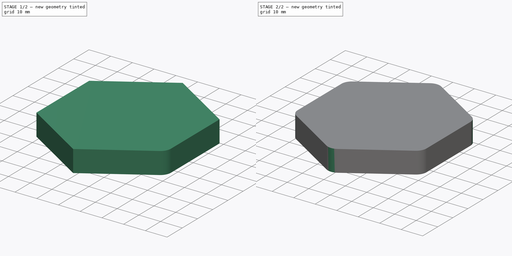
[diagram: build sequence overview — one tinted view per stage of 2, left to right]
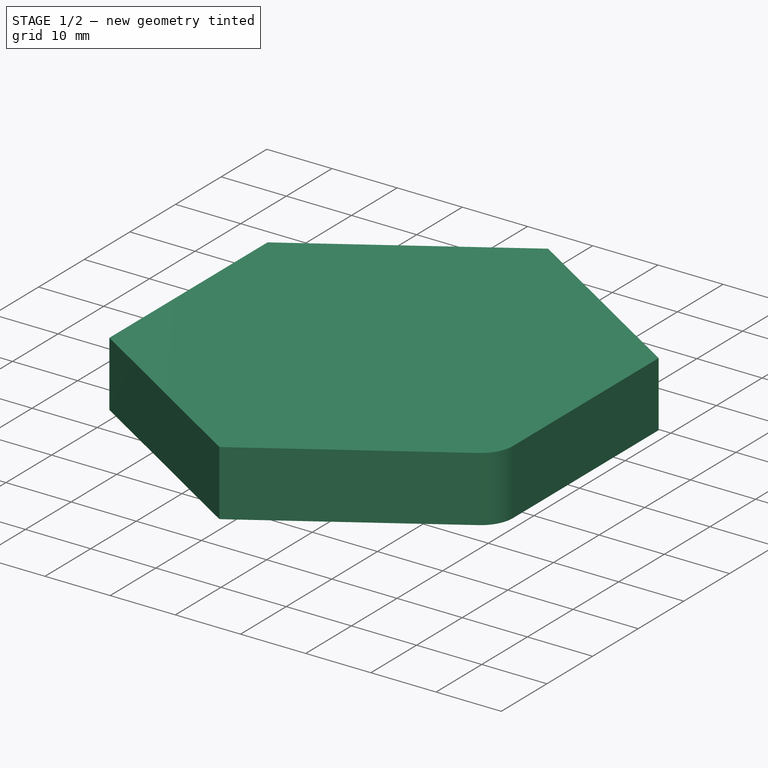
[diagram: stage 1 of 2 — iso view after this stage's code; geometry added in this stage tinted green]
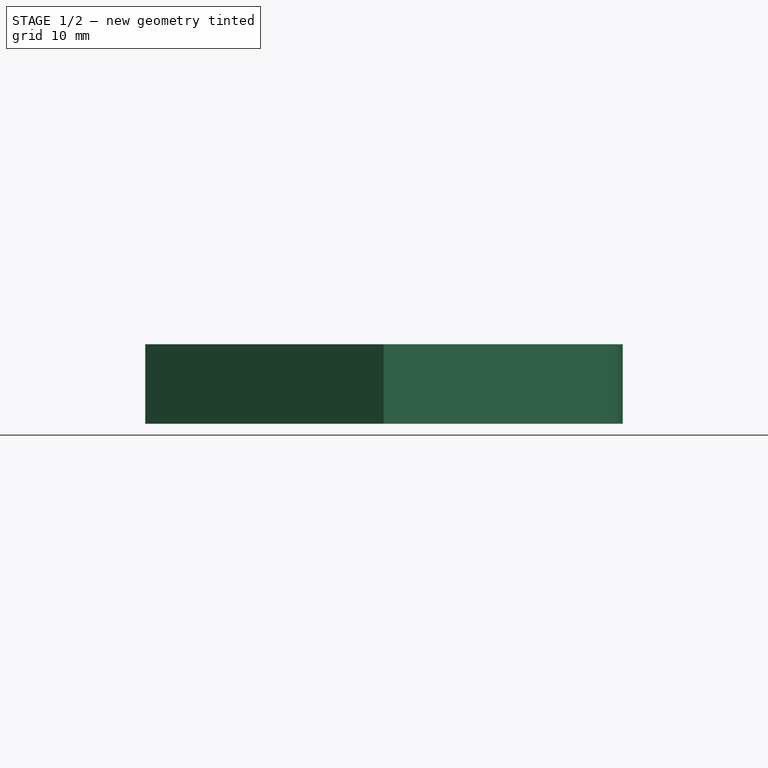
[diagram: stage 1 of 2 — front view after this stage's code; geometry added in this stage tinted green]
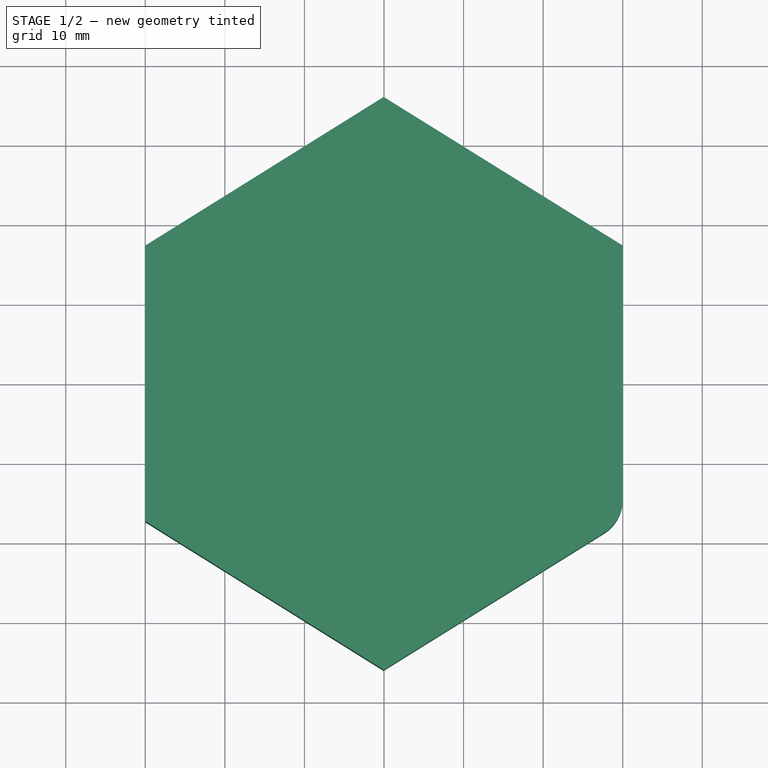
[diagram: stage 1 of 2 — top view after this stage's code; geometry added in this stage tinted green]
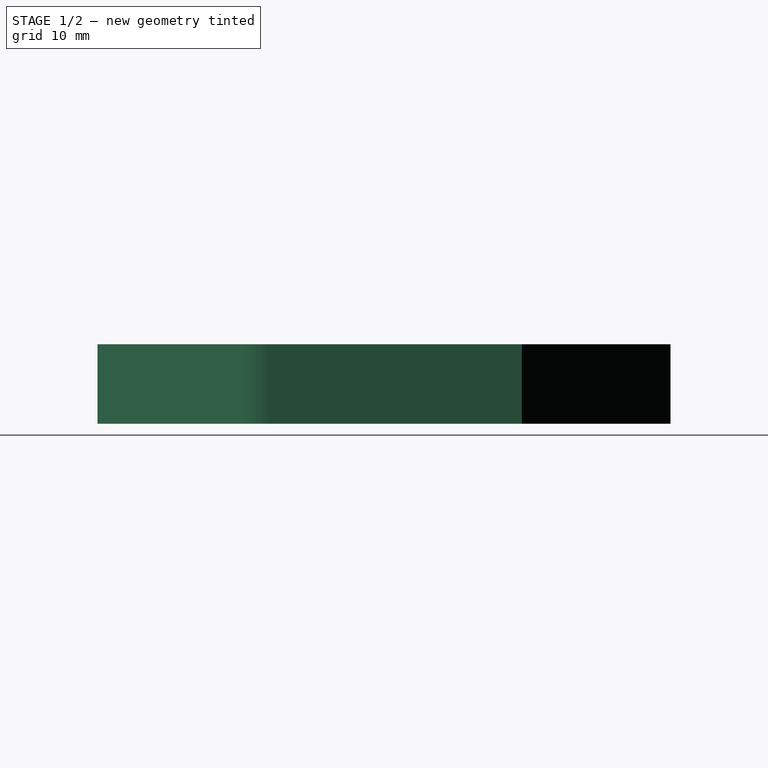
[diagram: stage 1 of 2 — right view after this stage's code; geometry added in this stage tinted green]
FCSTD DOCUMENT  (FreeCAD 0.21R33694 (Git))
Label: OJT1_T20R01_hexagon
License: All rights reserved
LicenseURL: https://en.wikipedia.org/wiki/All_rights_reserved
objects: Part::Fillet×3, Sketcher::SketchObject×1, PartDesign::Pad×1, PartDesign::Body×1
note: 7 computed .brp shape members not serialized (recipe doc carries the construction recipe); baked Part::Feature solids carry a one-line shape summary decoded from their .brp

FEATURE [Sketcher::SketchObject] Sketch
  FullyConstrained = false
  MapMode = 5
  Support = -> [XY_Plane]
  sketch-geometry (7):
    g0: LineSegment StartX=-0.042821 StartY=36 StartZ=0 EndX=-30 EndY=17.3205 EndZ=0
    g1: LineSegment StartX=-30 StartY=17.3205 StartZ=0 EndX=-30 EndY=-17.3205 EndZ=0
    g2: LineSegment StartX=-30 StartY=-17.3205 StartZ=0 EndX=-0.042821 EndY=-36 EndZ=0
    g3: LineSegment StartX=-0.042821 StartY=-36 StartZ=0 EndX=30 EndY=-17.3205 EndZ=0
    g4: LineSegment StartX=30 StartY=-17.3205 StartZ=0 EndX=30 EndY=17.3205 EndZ=0
    g5: LineSegment StartX=30 StartY=17.3205 StartZ=0 EndX=-0.042821 EndY=36 EndZ=0
    g6: LineSegment StartX=0 StartY=0 StartZ=0 EndX=-30 EndY=17.3205 EndZ=0
  constraints (15):
    c: Coincident(g0,g1)
    c: Coincident(g1,g2)
    c: Coincident(g2,g3)
    c: Coincident(g3,g4)
    c: Coincident(g4,g5)
    c: Coincident(g5,g0)
    c: Symmetric(g0,g2,g-1)
    c: Symmetric(g0,g1,g-1)
    c: Symmetric(g4,g3,g-1)
    c: Symmetric(g1,g3,g-2)
    c: DistanceX(g1,g3) = 60
    c: DistanceY(g2,g0) = 72
    c: Coincident(g6,g0)
    c: Coincident(g6,g-1)
    c: Angle(g-2,g6) = 1.0472
FEATURE [PartDesign::Pad] Pad
  Direction = (0,0,1)
  Length = 10
  Length2 = 10
  Profile = -> Sketch
  ReferenceAxis = -> Sketch [N_Axis]
  Type = 0
FEATURE [PartDesign::Body] Body
  Group = -> [Sketch,Pad]
  Origin = -> Origin
  Tip = -> Pad
FEATURE [Part::Fillet] Fillet
  Base = -> Pad
  Edges = 1 edges r=5: [Edge11]
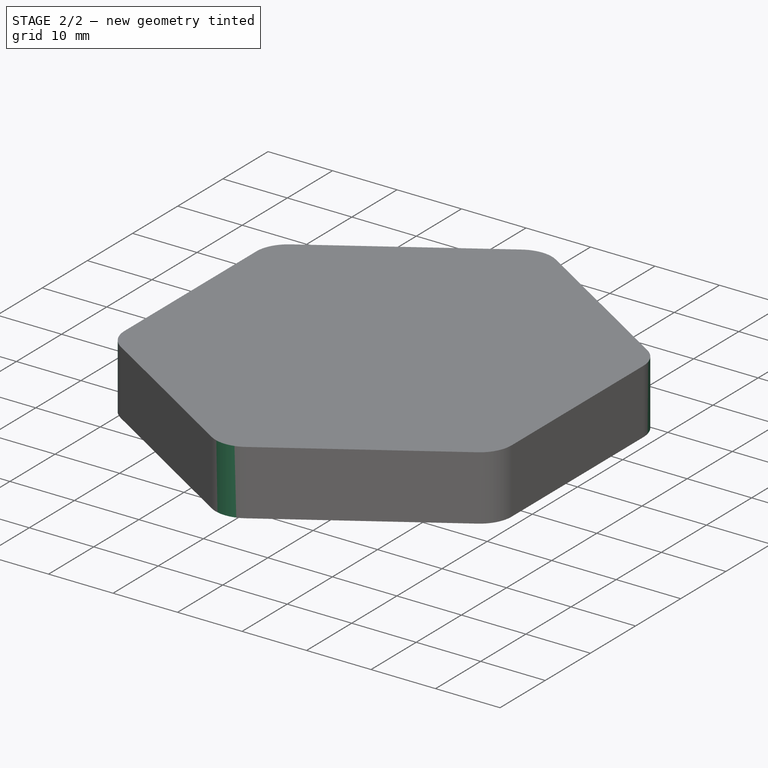
[diagram: stage 2 of 2 — iso view after this stage's code; geometry added in this stage tinted green]
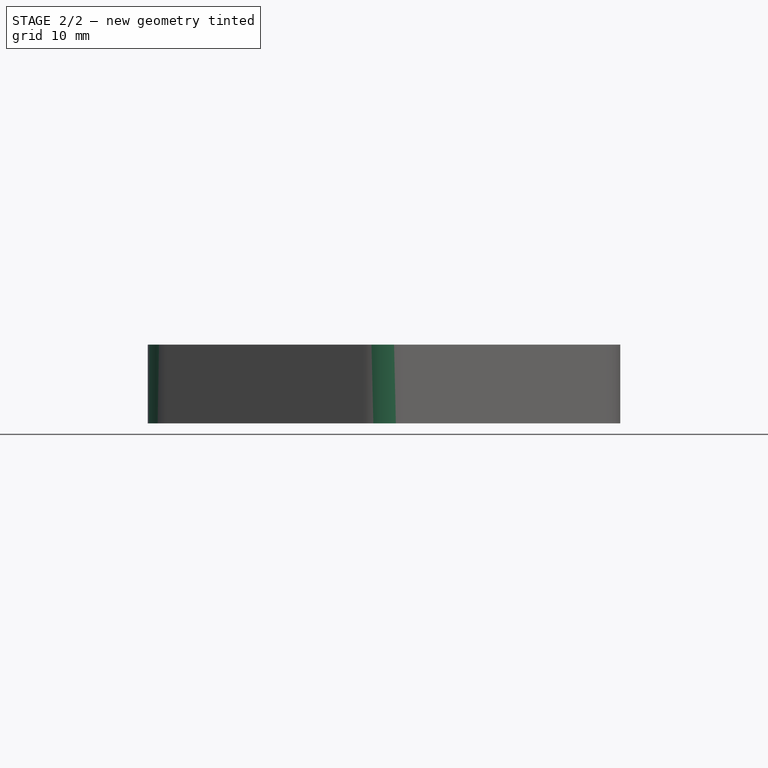
[diagram: stage 2 of 2 — front view after this stage's code; geometry added in this stage tinted green]
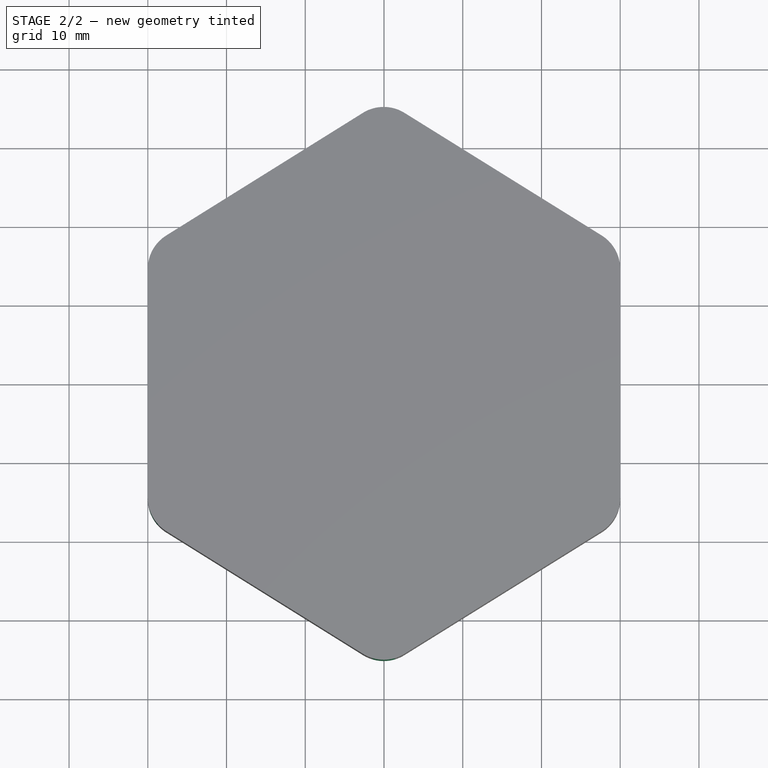
[diagram: stage 2 of 2 — top view after this stage's code; geometry added in this stage tinted green]
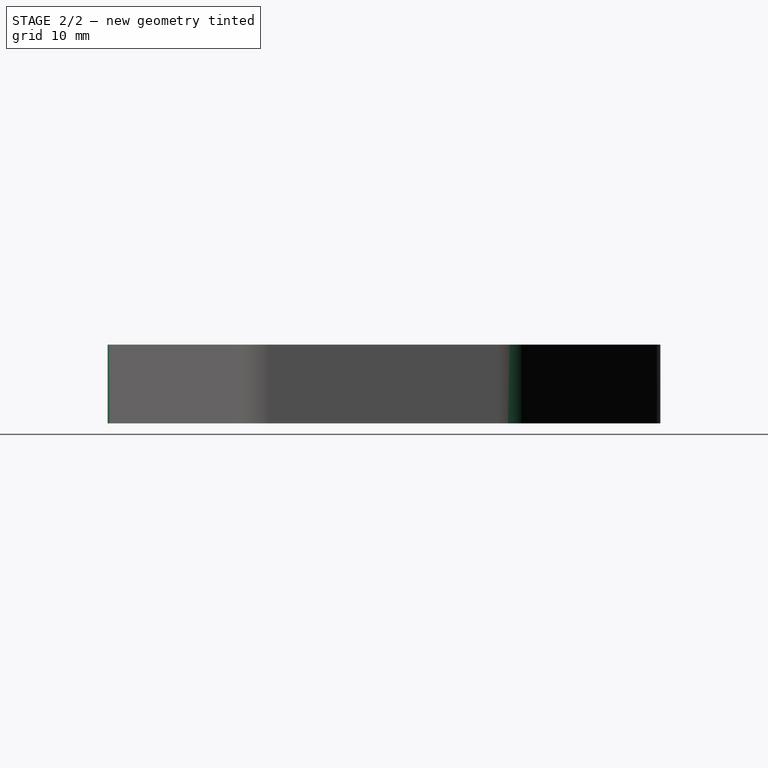
[diagram: stage 2 of 2 — right view after this stage's code; geometry added in this stage tinted green]
FEATURE [Part::Fillet] Fillet001
  Base = -> Fillet
  Edges = 1 edges r=5: [Edge19]
FEATURE [Part::Fillet] Fillet002
  Base = -> Fillet001
  Edges = 4 edges r=5: [Edge17,Edge18,Edge21,Edge22]
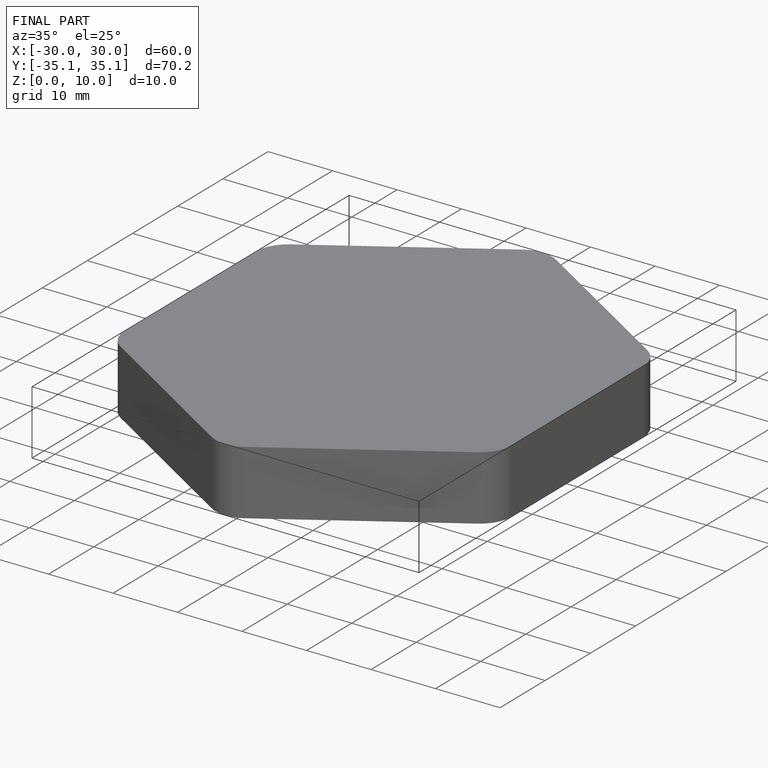
[diagram: finished part — iso view with bounding-box wireframe]
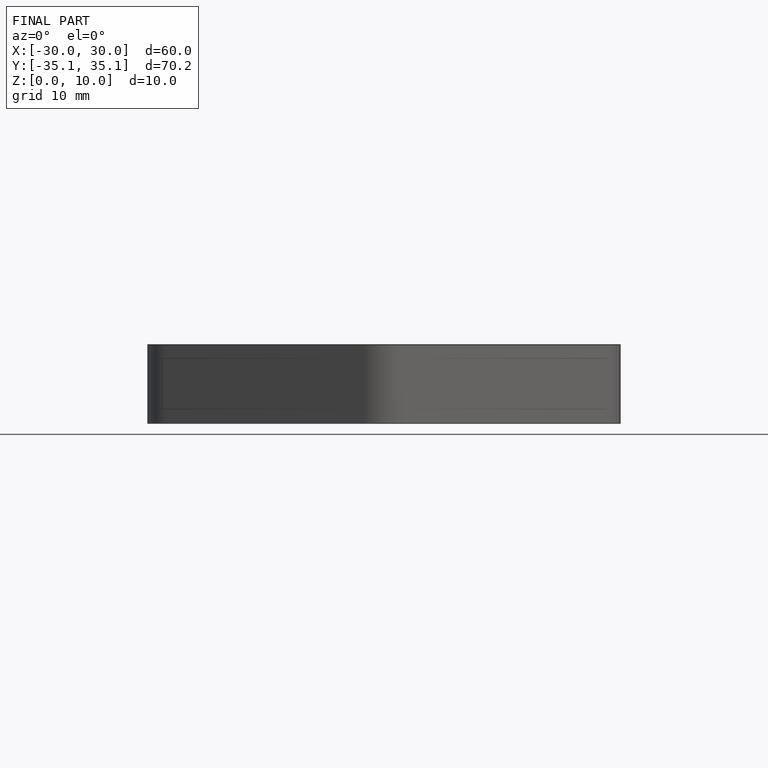
[diagram: finished part — front view with bounding-box wireframe]
